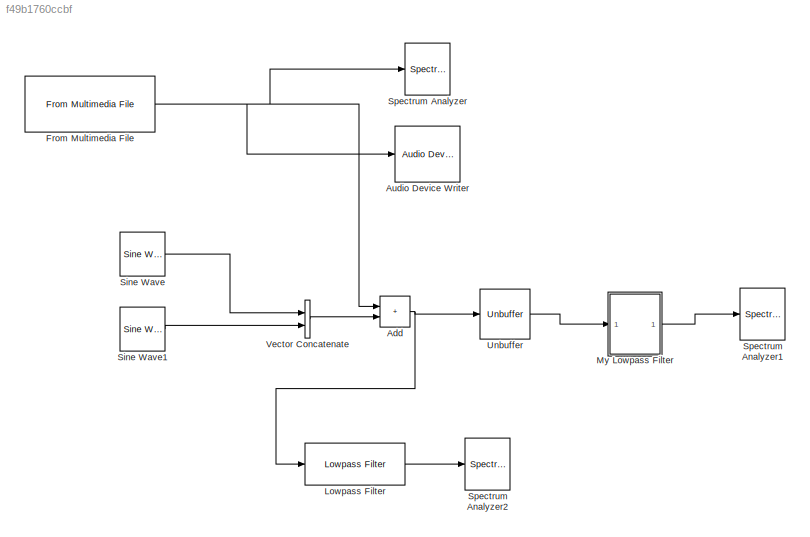
MODEL slx_f49b1760ccbf
KIND model
CONFIG AbsTol = auto
CONFIG EnableMultiTasking = off
CONFIG FixedStep = auto
CONFIG MaxStep = auto
CONFIG MinStep = auto
CONFIG RelTol = 1e-3
CONFIG SampleTimeConstraint = Unconstrained
CONFIG SolverName = VariableStepAuto
CONFIG StartTime = 0.0
CONFIG StopTime = 10.0
BLOCK [Sum] Add
  IconShape = rectangular
  Ports = [2, 1]
BLOCK [Reference] Audio Device Writer  REF=dspsnks4/Audio Device
Writer
  Ports = [1]
  SourceBlock = dspsnks4/Audio Device\nWriter
  SourceProductBaseCode = DS
  SourceType = Audio Device Writer
BLOCK [Reference] From Multimedia File  REF=dspvision/From Multimedia File
  Ports = [0, 1]
  SourceBlock = dspvision/From Multimedia File
  SourceProductBaseCode = DS,HW,VP
  SourceType = From Multimedia File
BLOCK [Reference] Lowpass Filter  REF=dspfdesign/Lowpass Filter
  Ports = [1, 1]
  SourceBlock = dspfdesign/Lowpass Filter
  SourceProductBaseCode = DS
  SourceType = dsp.simulink.LowpassFilter
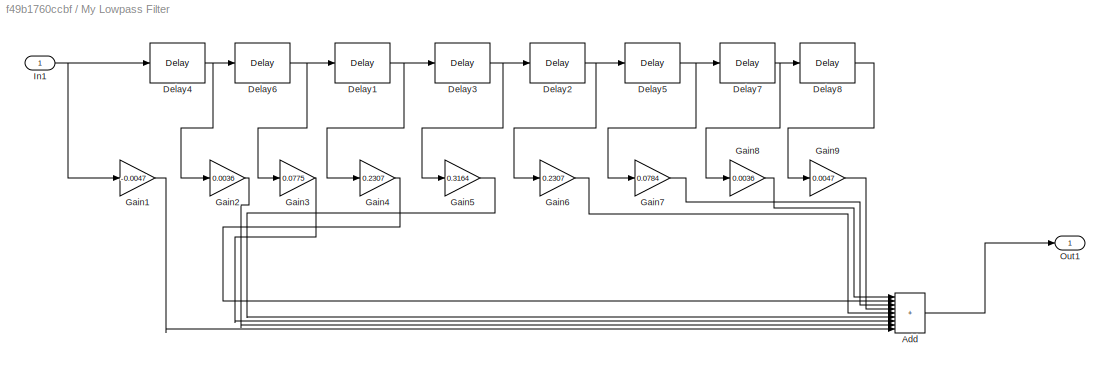
BLOCK [SubSystem] My Lowpass Filter
  Ports = [1, 1]
  RequestExecContextInheritance = off
BLOCK [Sum] My Lowpass Filter/Add
  IconShape = rectangular
  Inputs = +++++++++
  Ports = [9, 1]
BLOCK [Delay] My Lowpass Filter/Delay1
  DelayLength = 1
  InitialCondition = 0
  InputPortMap = u0
  Ports = [1, 1]
  UseCircularBuffer = on
  UserDataPersistent = on
BLOCK [Delay] My Lowpass Filter/Delay2
  DelayLength = 1
  InitialCondition = 0
  InputPortMap = u0
  Ports = [1, 1]
  UseCircularBuffer = on
  UserDataPersistent = on
BLOCK [Delay] My Lowpass Filter/Delay3
  DelayLength = 1
  InitialCondition = 0
  InputPortMap = u0
  Ports = [1, 1]
  UseCircularBuffer = on
  UserDataPersistent = on
BLOCK [Delay] My Lowpass Filter/Delay4
  DelayLength = 1
  InitialCondition = 0
  InputPortMap = u0
  Ports = [1, 1]
  UseCircularBuffer = on
  UserDataPersistent = on
BLOCK [Delay] My Lowpass Filter/Delay5
  DelayLength = 1
  InitialCondition = 0
  InputPortMap = u0
  Ports = [1, 1]
  UseCircularBuffer = on
  UserDataPersistent = on
BLOCK [Delay] My Lowpass Filter/Delay6
  DelayLength = 1
  InitialCondition = 0
  InputPortMap = u0
  Ports = [1, 1]
  UseCircularBuffer = on
  UserDataPersistent = on
BLOCK [Delay] My Lowpass Filter/Delay7
  DelayLength = 1
  InitialCondition = 0
  InputPortMap = u0
  Ports = [1, 1]
  UseCircularBuffer = on
  UserDataPersistent = on
BLOCK [Delay] My Lowpass Filter/Delay8
  DelayLength = 1
  InitialCondition = 0
  InputPortMap = u0
  Ports = [1, 1]
  UseCircularBuffer = on
  UserDataPersistent = on
BLOCK [Gain] My Lowpass Filter/Gain1
  Gain = -0.0047
BLOCK [Gain] My Lowpass Filter/Gain2
  Gain = 0.0036
BLOCK [Gain] My Lowpass Filter/Gain3
  Gain = 0.0775
BLOCK [Gain] My Lowpass Filter/Gain4
  Gain = 0.2307
BLOCK [Gain] My Lowpass Filter/Gain5
  Gain = 0.3164
BLOCK [Gain] My Lowpass Filter/Gain6
  Gain = 0.2307
BLOCK [Gain] My Lowpass Filter/Gain7
  Gain = 0.0784
BLOCK [Gain] My Lowpass Filter/Gain8
  Gain = 0.0036
BLOCK [Gain] My Lowpass Filter/Gain9
  Gain = 0.0047
BLOCK [Inport] My Lowpass Filter/In1
BLOCK [Outport] My Lowpass Filter/Out1
  VectorParamsAs1DForOutWhenUnconnected = off
BLOCK [Reference] Sine Wave  REF=dspsrcs4/Sine Wave
  Ports = [0, 1]
  SourceBlock = dspsrcs4/Sine Wave
  SourceProductBaseCode = DS
  SourceType = Sine Wave
BLOCK [Reference] Sine Wave1  REF=dspsrcs4/Sine Wave
  Ports = [0, 1]
  SourceBlock = dspsrcs4/Sine Wave
  SourceProductBaseCode = DS
  SourceType = Sine Wave
BLOCK [SpectrumAnalyzer] Spectrum Analyzer
  Ports = [1]
  ScopeSpecificationString = spbscopes.SpectrumAnalyzerBlockCfg('CurrentConfiguration', extmgr.ConfigurationSet(extmgr.Configuration('Core','General UI',true),extmgr.Configuration('Core','Source UI',true),extmgr.Configuration('Sources','WiredSimulink',true),extmgr.Configuration('Visuals','Spectrum',true,'AxesProperties',struct('Color',{[0 0 0],[0 0 0]},'XColor',{[0.686274509803922 0.686274509803922 0.686274509803922],[0.68627...<+2223ch>
BLOCK [SpectrumAnalyzer] Spectrum Analyzer1
  Ports = [1]
  ScopeSpecificationString = spbscopes.SpectrumAnalyzerBlockCfg('CurrentConfiguration', extmgr.ConfigurationSet(extmgr.Configuration('Core','General UI',true),extmgr.Configuration('Core','Source UI',true),extmgr.Configuration('Sources','WiredSimulink',true),extmgr.Configuration('Visuals','Spectrum',true,'AxesProperties',struct('Color',{[0 0 0],[0 0 0]},'XColor',{[0.686274509803922 0.686274509803922 0.686274509803922],[0.68627...<+2015ch>
BLOCK [SpectrumAnalyzer] Spectrum Analyzer2
  Ports = [1]
  ScopeSpecificationString = spbscopes.SpectrumAnalyzerBlockCfg('CurrentConfiguration', extmgr.ConfigurationSet(extmgr.Configuration('Core','General UI',true),extmgr.Configuration('Core','Source UI',true),extmgr.Configuration('Sources','WiredSimulink',true),extmgr.Configuration('Visuals','Spectrum',true,'AxesProperties',struct('Color',{[0 0 0],[0 0 0]},'XColor',{[0.686274509803922 0.686274509803922 0.686274509803922],[0.68627...<+2014ch>
BLOCK [Unbuffer] Unbuffer
  Ports = [1, 1]
BLOCK [Concatenate] Vector Concatenate
  ConcatenateDimension = 2
  Mode = Multidimensional array
  Ports = [2, 1]
NET Add:1 -> Lowpass Filter:1, Unbuffer:1
NET From Multimedia File:1 -> Add:1, Audio Device Writer:1, Spectrum Analyzer:1
LINE Lowpass Filter:1 -> Spectrum Analyzer2:1
LINE My Lowpass Filter/Add:1 -> My Lowpass Filter/Out1:1
NET My Lowpass Filter/Delay1:1 -> My Lowpass Filter/Delay3:1, My Lowpass Filter/Gain4:1
NET My Lowpass Filter/Delay2:1 -> My Lowpass Filter/Delay5:1, My Lowpass Filter/Gain6:1
NET My Lowpass Filter/Delay3:1 -> My Lowpass Filter/Delay2:1, My Lowpass Filter/Gain5:1
NET My Lowpass Filter/Delay4:1 -> My Lowpass Filter/Delay6:1, My Lowpass Filter/Gain2:1
NET My Lowpass Filter/Delay5:1 -> My Lowpass Filter/Delay7:1, My Lowpass Filter/Gain7:1
NET My Lowpass Filter/Delay6:1 -> My Lowpass Filter/Delay1:1, My Lowpass Filter/Gain3:1
NET My Lowpass Filter/Delay7:1 -> My Lowpass Filter/Delay8:1, My Lowpass Filter/Gain8:1
LINE My Lowpass Filter/Delay8:1 -> My Lowpass Filter/Gain9:1
LINE My Lowpass Filter/Gain1:1 -> My Lowpass Filter/Add:9
LINE My Lowpass Filter/Gain2:1 -> My Lowpass Filter/Add:8
LINE My Lowpass Filter/Gain3:1 -> My Lowpass Filter/Add:7
LINE My Lowpass Filter/Gain4:1 -> My Lowpass Filter/Add:2
LINE My Lowpass Filter/Gain5:1 -> My Lowpass Filter/Add:6
LINE My Lowpass Filter/Gain6:1 -> My Lowpass Filter/Add:5
LINE My Lowpass Filter/Gain7:1 -> My Lowpass Filter/Add:3
LINE My Lowpass Filter/Gain8:1 -> My Lowpass Filter/Add:1
LINE My Lowpass Filter/Gain9:1 -> My Lowpass Filter/Add:4
NET My Lowpass Filter/In1:1 -> My Lowpass Filter/Delay4:1, My Lowpass Filter/Gain1:1
LINE My Lowpass Filter:1 -> Spectrum Analyzer1:1
LINE Sine Wave1:1 -> Vector Concatenate:2
LINE Sine Wave:1 -> Vector Concatenate:1
LINE Unbuffer:1 -> My Lowpass Filter:1
LINE Vector Concatenate:1 -> Add:2
note: NET lines group one-source signal fan-out (src -> all destinations, sorted); 1:1 wires keep LINE
